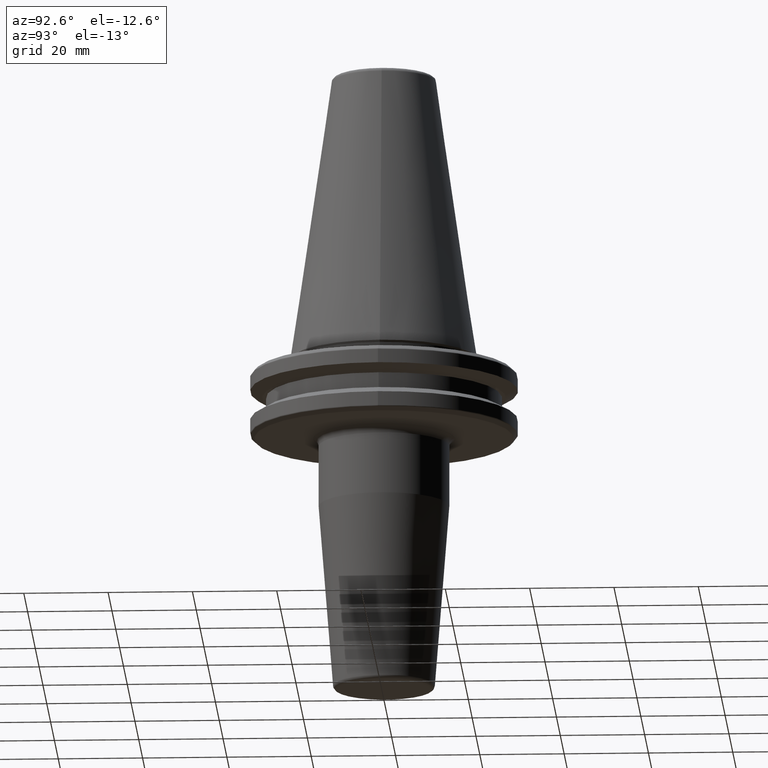
[diagram: clean part render]
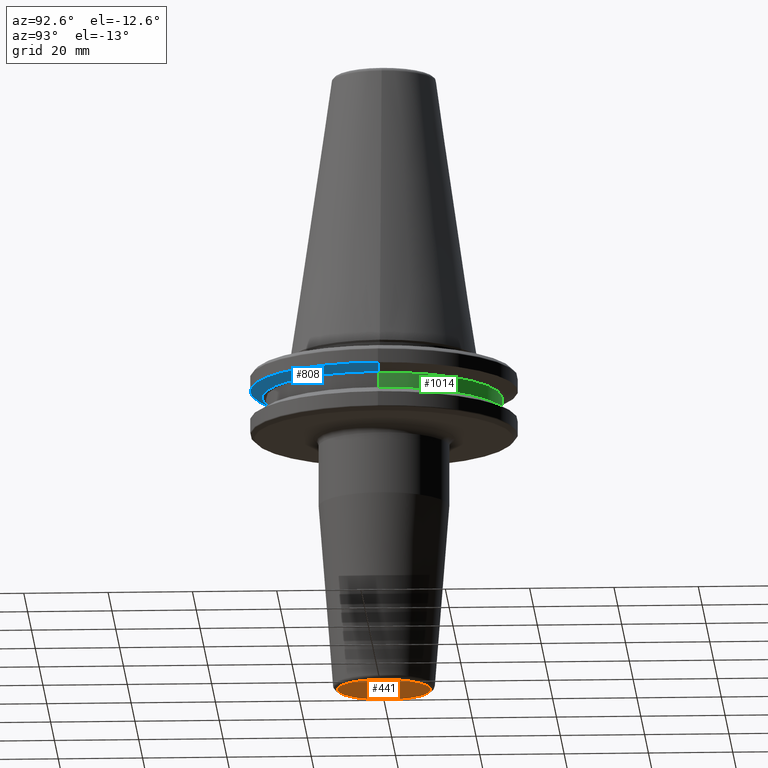
[diagram: same view with three faces highlighted in distinct colors, each labeled with its STEP entity id]
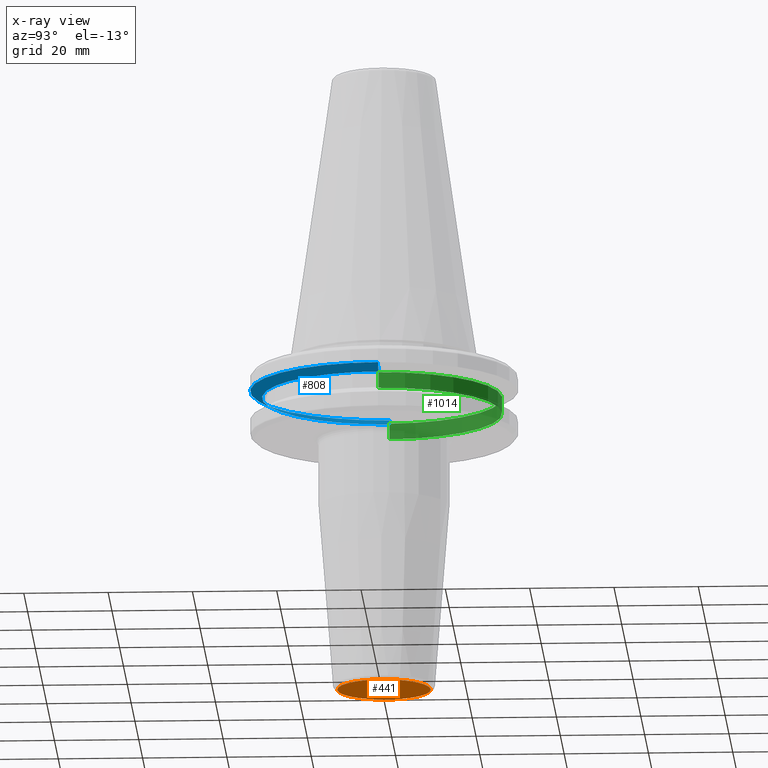
[diagram: x-ray of the same camera — body ghosted, the three highlighted faces saturated]
A machine part, auxiliary view with three faces highlighted in distinct colors.
The next image is the same camera in x-ray (body ghosted, the three faces saturated) — at least one of them is partly hidden behind the body in this view.
Their STEP definitions:

[orange] entity #441 — the highlighted planar face has unit normal (-0, 0, -1).
#21 = CARTESIAN_POINT ( 'NONE',  ( 0.0000000000000000000, -6.839794164567254200E-018, -80.00000000000000000 ) ) ;
#59 = EDGE_CURVE ( 'NONE', #374, #162, #189, .T. ) ;
#110 = DIRECTION ( 'NONE',  ( -0.0000000000000000000, 2.829168385244881300E-016, -1.000000000000000000 ) ) ;
#162 = VERTEX_POINT ( 'NONE', #851 ) ;
#189 = CIRCLE ( 'NONE', #977, 11.07560950834179500 ) ;
#205 = AXIS2_PLACEMENT_3D ( 'NONE', #368, #1037, #472 ) ;
#250 = ORIENTED_EDGE ( 'NONE', *, *, #1021, .T. ) ;
#326 = CARTESIAN_POINT ( 'NONE',  ( 0.0000000000000000000, 11.07560950834179500, -80.00000000000000000 ) ) ;
#368 = CARTESIAN_POINT ( 'NONE',  ( 0.0000000000000000000, -6.839794164567254200E-018, -80.00000000000000000 ) ) ;
#374 = VERTEX_POINT ( 'NONE', #326 ) ;
#430 = AXIS2_PLACEMENT_3D ( 'NONE', #1078, #110, #517 ) ;
#441 = ADVANCED_FACE ( 'NONE', ( #854 ), #899, .T. ) ;
#472 = DIRECTION ( 'NONE',  ( 0.0000000000000000000, 1.000000000000000000, 0.0000000000000000000 ) ) ;
#490 = EDGE_LOOP ( 'NONE', ( #1163, #250 ) ) ;
#517 = DIRECTION ( 'NONE',  ( 0.0000000000000000000, 1.000000000000000000, 2.829168385244881300E-016 ) ) ;
#530 = DIRECTION ( 'NONE',  ( 0.0000000000000000000, 1.000000000000000000, 0.0000000000000000000 ) ) ;
#851 = CARTESIAN_POINT ( 'NONE',  ( 1.417414554388216500E-015, -11.07560950834179500, -80.00000000000000000 ) ) ;
#854 = FACE_OUTER_BOUND ( 'NONE', #490, .T. ) ;
#899 = PLANE ( 'NONE',  #430 ) ;
#947 = CIRCLE ( 'NONE', #205, 11.07560950834179500 ) ;
#977 = AXIS2_PLACEMENT_3D ( 'NONE', #21, #1116, #530 ) ;
#1021 = EDGE_CURVE ( 'NONE', #162, #374, #947, .T. ) ;
#1037 = DIRECTION ( 'NONE',  ( -0.0000000000000000000, 2.829168385244881300E-016, -1.000000000000000000 ) ) ;
#1078 = CARTESIAN_POINT ( 'NONE',  ( 0.0000000000000000000, 11.07560950834179500, -80.00000000000000000 ) ) ;
#1116 = DIRECTION ( 'NONE',  ( -0.0000000000000000000, 2.829168385244881300E-016, -1.000000000000000000 ) ) ;
#1163 = ORIENTED_EDGE ( 'NONE', *, *, #59, .T. ) ;

[blue] entity #808 — the highlighted conical surface has half-angle 60 deg.
#11 = EDGE_CURVE ( 'NONE', #1192, #573, #1026, .T. ) ;
#18 = ORIENTED_EDGE ( 'NONE', *, *, #1112, .F. ) ;
#133 = LINE ( 'NONE', #179, #366 ) ;
#155 = CONICAL_SURFACE ( 'NONE', #931, 31.75000000000000000, 1.047197551196598500 ) ;
#176 = CARTESIAN_POINT ( 'NONE',  ( 31.75000000000000000, 0.0000000000000000000, -7.578163357943284800 ) ) ;
#179 = CARTESIAN_POINT ( 'NONE',  ( -31.75000000000000000, 3.888253587292846500E-015, -7.578163357943284800 ) ) ;
#194 = ORIENTED_EDGE ( 'NONE', *, *, #864, .T. ) ;
#199 = ORIENTED_EDGE ( 'NONE', *, *, #224, .T. ) ;
#208 = DIRECTION ( 'NONE',  ( -0.0000000000000000000, -0.0000000000000000000, 1.000000000000000000 ) ) ;
#224 = EDGE_CURVE ( 'NONE', #434, #591, #649, .T. ) ;
#269 = ORIENTED_EDGE ( 'NONE', *, *, #11, .F. ) ;
#297 = CARTESIAN_POINT ( 'NONE',  ( 0.0000000000000000000, 0.0000000000000000000, -7.578163357943284800 ) ) ;
#298 = CARTESIAN_POINT ( 'NONE',  ( 0.0000000000000000000, 0.0000000000000000000, -9.200000000000013500 ) ) ;
#339 = CARTESIAN_POINT ( 'NONE',  ( 28.94089653438084400, 0.0000000000000000000, -9.200000000000013500 ) ) ;
#347 = EDGE_LOOP ( 'NONE', ( #18, #199, #194, #269 ) ) ;
#366 = VECTOR ( 'NONE', #1153, 1000.000000000000000 ) ;
#413 = AXIS2_PLACEMENT_3D ( 'NONE', #485, #699, #782 ) ;
#434 = VERTEX_POINT ( 'NONE', #1087 ) ;
#451 = AXIS2_PLACEMENT_3D ( 'NONE', #298, #208, #711 ) ;
#485 = CARTESIAN_POINT ( 'NONE',  ( 0.0000000000000000000, 0.0000000000000000000, -7.578163357943284800 ) ) ;
#573 = VERTEX_POINT ( 'NONE', #829 ) ;
#591 = VERTEX_POINT ( 'NONE', #339 ) ;
#649 = CIRCLE ( 'NONE', #451, 28.94089653438084400 ) ;
#699 = DIRECTION ( 'NONE',  ( -0.0000000000000000000, -0.0000000000000000000, 1.000000000000000000 ) ) ;
#709 = FACE_OUTER_BOUND ( 'NONE', #347, .T. ) ;
#711 = DIRECTION ( 'NONE',  ( 1.000000000000000000, 0.0000000000000000000, 0.0000000000000000000 ) ) ;
#782 = DIRECTION ( 'NONE',  ( 1.000000000000000000, 0.0000000000000000000, 0.0000000000000000000 ) ) ;
#808 = ADVANCED_FACE ( 'NONE', ( #709 ), #155, .T. ) ;
#829 = CARTESIAN_POINT ( 'NONE',  ( 31.75000000000000000, 0.0000000000000000000, -7.578163357943284800 ) ) ;
#864 = EDGE_CURVE ( 'NONE', #591, #573, #1123, .T. ) ;
#874 = VECTOR ( 'NONE', #1051, 1000.000000000000000 ) ;
#910 = CARTESIAN_POINT ( 'NONE',  ( -31.75000000000000000, 3.888253587292846500E-015, -7.578163357943284800 ) ) ;
#931 = AXIS2_PLACEMENT_3D ( 'NONE', #297, #954, #1138 ) ;
#954 = DIRECTION ( 'NONE',  ( -0.0000000000000000000, -0.0000000000000000000, 1.000000000000000000 ) ) ;
#1026 = CIRCLE ( 'NONE', #413, 31.75000000000000000 ) ;
#1051 = DIRECTION ( 'NONE',  ( 0.8660254037844390400, 0.0000000000000000000, 0.4999999999999993300 ) ) ;
#1087 = CARTESIAN_POINT ( 'NONE',  ( -28.94089653438084400, 3.716245608910634800E-015, -9.200000000000013500 ) ) ;
#1112 = EDGE_CURVE ( 'NONE', #434, #1192, #133, .T. ) ;
#1123 = LINE ( 'NONE', #176, #874 ) ;
#1138 = DIRECTION ( 'NONE',  ( 1.000000000000000000, 0.0000000000000000000, 0.0000000000000000000 ) ) ;
#1153 = DIRECTION ( 'NONE',  ( -0.8660254037844390400, 1.060575238724907400E-016, 0.4999999999999993300 ) ) ;
#1192 = VERTEX_POINT ( 'NONE', #910 ) ;

[green] entity #1014 — the highlighted cylindrical surface (partial cylindrical patch) has radius 28 mm, axis along (-0, -0, 1).
#54 = VERTEX_POINT ( 'NONE', #600 ) ;
#124 = ORIENTED_EDGE ( 'NONE', *, *, #497, .F. ) ;
#164 = CARTESIAN_POINT ( 'NONE',  ( 28.00000000000000000, 0.0000000000000000000, -9.199999999999999300 ) ) ;
#200 = EDGE_CURVE ( 'NONE', #590, #54, #672, .T. ) ;
#248 = AXIS2_PLACEMENT_3D ( 'NONE', #256, #1231, #668 ) ;
#256 = CARTESIAN_POINT ( 'NONE',  ( 0.0000000000000000000, 0.0000000000000000000, 113.5216080541959500 ) ) ;
#260 = DIRECTION ( 'NONE',  ( -0.0000000000000000000, -0.0000000000000000000, 1.000000000000000000 ) ) ;
#282 = AXIS2_PLACEMENT_3D ( 'NONE', #1126, #1117, #559 ) ;
#295 = CIRCLE ( 'NONE', #341, 28.00000000000000000 ) ;
#341 = AXIS2_PLACEMENT_3D ( 'NONE', #743, #455, #750 ) ;
#452 = VERTEX_POINT ( 'NONE', #985 ) ;
#453 = VECTOR ( 'NONE', #855, 1000.000000000000000 ) ;
#455 = DIRECTION ( 'NONE',  ( -0.0000000000000000000, -0.0000000000000000000, 1.000000000000000000 ) ) ;
#467 = EDGE_LOOP ( 'NONE', ( #755, #1074, #124, #1194 ) ) ;
#497 = EDGE_CURVE ( 'NONE', #759, #54, #295, .T. ) ;
#502 = EDGE_CURVE ( 'NONE', #452, #590, #1039, .T. ) ;
#559 = DIRECTION ( 'NONE',  ( 1.000000000000000000, 0.0000000000000000000, 0.0000000000000000000 ) ) ;
#560 = CARTESIAN_POINT ( 'NONE',  ( -28.00000000000000000, 3.429011037612589300E-015, -13.00000000000001100 ) ) ;
#590 = VERTEX_POINT ( 'NONE', #560 ) ;
#600 = CARTESIAN_POINT ( 'NONE',  ( -28.00000000000000000, 3.429011037612589300E-015, -9.199999999999999300 ) ) ;
#668 = DIRECTION ( 'NONE',  ( 1.000000000000000000, 0.0000000000000000000, 0.0000000000000000000 ) ) ;
#672 = LINE ( 'NONE', #1040, #881 ) ;
#694 = CYLINDRICAL_SURFACE ( 'NONE', #248, 28.00000000000000000 ) ;
#743 = CARTESIAN_POINT ( 'NONE',  ( 0.0000000000000000000, 0.0000000000000000000, -9.199999999999999300 ) ) ;
#750 = DIRECTION ( 'NONE',  ( 1.000000000000000000, 0.0000000000000000000, 0.0000000000000000000 ) ) ;
#755 = ORIENTED_EDGE ( 'NONE', *, *, #502, .T. ) ;
#758 = FACE_OUTER_BOUND ( 'NONE', #467, .T. ) ;
#759 = VERTEX_POINT ( 'NONE', #164 ) ;
#790 = EDGE_CURVE ( 'NONE', #452, #759, #961, .T. ) ;
#855 = DIRECTION ( 'NONE',  ( -0.0000000000000000000, -0.0000000000000000000, 1.000000000000000000 ) ) ;
#881 = VECTOR ( 'NONE', #260, 1000.000000000000000 ) ;
#961 = LINE ( 'NONE', #1233, #453 ) ;
#985 = CARTESIAN_POINT ( 'NONE',  ( 28.00000000000000000, 0.0000000000000000000, -13.00000000000001100 ) ) ;
#1014 = ADVANCED_FACE ( 'NONE', ( #758 ), #694, .T. ) ;
#1039 = CIRCLE ( 'NONE', #282, 28.00000000000000000 ) ;
#1040 = CARTESIAN_POINT ( 'NONE',  ( -28.00000000000000000, 3.429011037612589300E-015, 113.5216080541959500 ) ) ;
#1074 = ORIENTED_EDGE ( 'NONE', *, *, #200, .T. ) ;
#1117 = DIRECTION ( 'NONE',  ( -0.0000000000000000000, -0.0000000000000000000, 1.000000000000000000 ) ) ;
#1126 = CARTESIAN_POINT ( 'NONE',  ( 0.0000000000000000000, 0.0000000000000000000, -13.00000000000001100 ) ) ;
#1194 = ORIENTED_EDGE ( 'NONE', *, *, #790, .F. ) ;
#1231 = DIRECTION ( 'NONE',  ( -0.0000000000000000000, -0.0000000000000000000, 1.000000000000000000 ) ) ;
#1233 = CARTESIAN_POINT ( 'NONE',  ( 28.00000000000000000, 0.0000000000000000000, 113.5216080541959500 ) ) ;